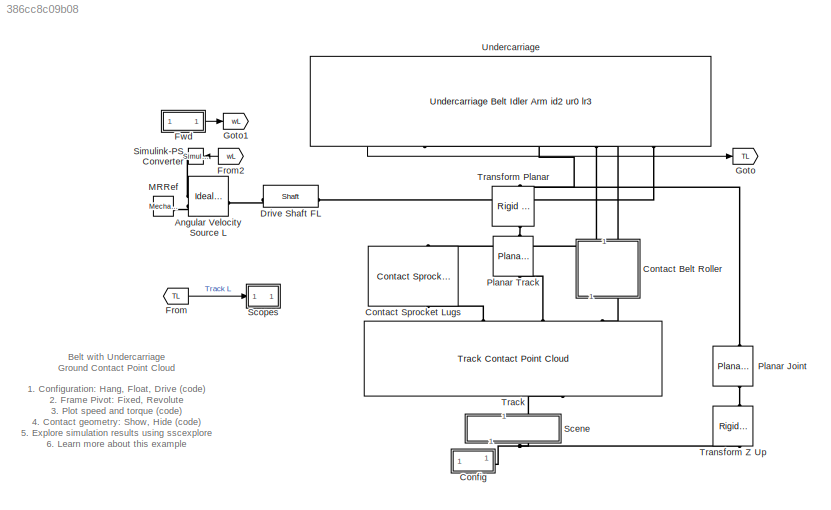
MODEL slx_386cc8c09b08
KIND model
CONFIG AbsTol = 1e-3
CONFIG EnableMultiTasking = on
CONFIG SolverName = ode23t
CONFIG StartFcn = tic
CONFIG StopFcn = Elapsed_Sim_Time = toc;\ndisp(['Elapsed Sim Time = ' num2str(Elapsed_Sim_Time)]);
CONFIG StopTime = 16
BLOCK [Reference] Angular Velocity Source L  REF=fl_lib/Mechanical/Mechanical Sources/Ideal Angular
Velocity Source
  SourceBlock = fl_lib/Mechanical/Mechanical Sources/Ideal Angular\nVelocity Source
  SourceType = Ideal Angular\nVelocity Source
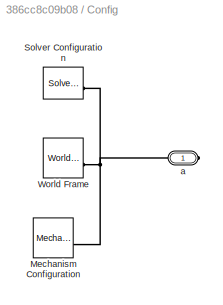
BLOCK [SubSystem] Config
BLOCK [Reference] Config/Mechanism Configuration  REF=sm_lib/Utilities/Mechanism
Configuration
  SourceBlock = sm_lib/Utilities/Mechanism\nConfiguration
  SourceType = Mechanism\nConfiguration
BLOCK [Reference] Config/Solver Configuration  REF=nesl_utility/Solver
Configuration
  SourceBlock = nesl_utility/Solver\nConfiguration
  SourceType = Solver\nConfiguration
BLOCK [Reference] Config/World Frame  REF=sm_lib/Frames and
Transforms/World Frame
  SourceBlock = sm_lib/Frames and\nTransforms/World Frame
  SourceType = World Frame
BLOCK [PMIOPort] Config/a
  Side = Right
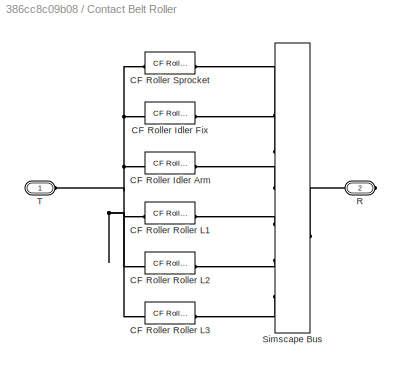
BLOCK [SubSystem] Contact Belt Roller
  NameLocation = right
BLOCK [Reference] Contact Belt Roller/CF Roller Idler Arm  REF=sm_trackV_lib_belt_contact_internal_sets/CF Roller Carcass
Planar s45
  NameLocation = right
  SourceBlock = sm_trackV_lib_belt_contact_internal_sets/CF Roller Carcass\nPlanar s45
BLOCK [Reference] Contact Belt Roller/CF Roller Idler Fix  REF=sm_trackV_lib_belt_contact_internal_sets/CF Roller Carcass
Planar s45
  NameLocation = right
  SourceBlock = sm_trackV_lib_belt_contact_internal_sets/CF Roller Carcass\nPlanar s45
BLOCK [Reference] Contact Belt Roller/CF Roller Roller L1  REF=sm_trackV_lib_belt_contact_internal_sets/CF Roller Carcass
Planar s45
  NameLocation = right
  SourceBlock = sm_trackV_lib_belt_contact_internal_sets/CF Roller Carcass\nPlanar s45
BLOCK [Reference] Contact Belt Roller/CF Roller Roller L2  REF=sm_trackV_lib_belt_contact_internal_sets/CF Roller Carcass
Planar s45
  NameLocation = right
  SourceBlock = sm_trackV_lib_belt_contact_internal_sets/CF Roller Carcass\nPlanar s45
BLOCK [Reference] Contact Belt Roller/CF Roller Roller L3  REF=sm_trackV_lib_belt_contact_internal_sets/CF Roller Carcass
Planar s45
  NameLocation = right
  SourceBlock = sm_trackV_lib_belt_contact_internal_sets/CF Roller Carcass\nPlanar s45
BLOCK [Reference] Contact Belt Roller/CF Roller Sprocket  REF=sm_trackV_lib_belt_contact_internal_sets/CF Roller Carcass
Planar s45
  NameLocation = right
  SourceBlock = sm_trackV_lib_belt_contact_internal_sets/CF Roller Carcass\nPlanar s45
BLOCK [PMIOPort] Contact Belt Roller/R
  Port = 2
  Side = Right
BLOCK [SimscapeBus] Contact Belt Roller/Simscape Bus
  HierarchyStrings = S;X;A;L1;L2;L3
BLOCK [PMIOPort] Contact Belt Roller/T
  Side = Left
BLOCK [Reference] Contact Sprocket Lugs  REF=sm_trackV_lib_belt_contact_internal_sets/Contact
Sprocket Lugs
Planar
t21 s45
  NameLocation = left
  SourceBlock = sm_trackV_lib_belt_contact_internal_sets/Contact\nSprocket Lugs\nPlanar\nt21 s45
  SourceType = Contact Force (Planar), Belt to Sprocket
BLOCK [Reference] Drive Shaft FL  REF=sm_trackV_lib_chain_underc_elem/Shaft
  SourceBlock = sm_trackV_lib_chain_underc_elem/Shaft
  SourceType = Driveshaft
BLOCK [From] From
  GotoTag = TL
BLOCK [From] From2
  GotoTag = wL
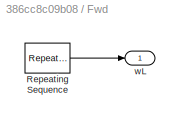
BLOCK [SubSystem] Fwd
  VariantControl = Fwd
BLOCK [Reference] Fwd/Repeating Sequence  REF=simulink/Sources/Repeating
Sequence
  SourceBlock = simulink/Sources/Repeating\nSequence
  SourceType = Repeating table
BLOCK [Outport] Fwd/wL
BLOCK [Goto] Goto
  GotoTag = TL
BLOCK [Goto] Goto1
  GotoTag = wL
BLOCK [Reference] MRRef  REF=fl_lib/Mechanical/Rotational Elements/Mechanical
Rotational Reference
  SourceBlock = fl_lib/Mechanical/Rotational Elements/Mechanical\nRotational Reference
  SourceType = Mechanical\nRotational Reference
BLOCK [Reference] Planar Joint  REF=sm_lib/Joints/Planar Joint
  Commented = through
  NameLocation = right
  SourceBlock = sm_lib/Joints/Planar Joint
  SourceType = Planar Joint
BLOCK [Reference] Planar Track  REF=sm_lib/Joints/Planar Joint
  SourceBlock = sm_lib/Joints/Planar Joint
  SourceType = Planar Joint
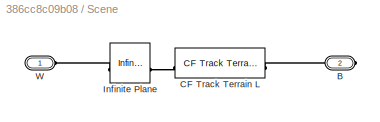
BLOCK [SubSystem] Scene
  Commented = on
  NameLocation = right
BLOCK [PMIOPort] Scene/B
  Port = 2
  Side = Right
BLOCK [Reference] Scene/CF Track Terrain L  REF=sm_trackV_lib_terrain_contact_s45/CF Track Terrain s45
  SourceBlock = sm_trackV_lib_terrain_contact_s45/CF Track Terrain s45
  SourceType = Contact Forces, Full Track to Terrain
BLOCK [Reference] Scene/Infinite Plane  REF=sm_lib/Curves and Surfaces/Infinite Plane
  SourceBlock = sm_lib/Curves and Surfaces/Infinite Plane
  SourceType = Infinite Plane
BLOCK [PMIOPort] Scene/W
  Side = Left
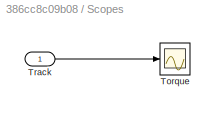
BLOCK [SubSystem] Scopes
BLOCK [Scope] Scopes/Torque
  Floating = off
  GraphicalSettings = {"GraphicalSettings":{"LegacySettings":true,"Style":{"Style":{"CurrentConfiguration":"extmgr.ConfigurationSet","MinimizeControls":"false","PlotType":"Auto","Version":"2023a"}}}}
  NumInputPorts = 1
  WasSavedAsWebScope = on
BLOCK [Inport] Scopes/Track
BLOCK [Reference] Simulink-PS Converter  REF=nesl_utility/Simulink-PS
Converter
  NameLocation = top
  SourceBlock = nesl_utility/Simulink-PS\nConverter
  SourceType = Simulink-PS\nConverter
BLOCK [Reference] Track  REF=sm_trackV_lib_belt_track_s45/Track
Contact
Point Cloud
  NameLocation = right
  SourceBlock = sm_trackV_lib_belt_track_s45/Track\nContact\nPoint Cloud
  SourceType = Segmented Belt (Planar), Point Cloud to Ground
BLOCK [Reference] Transform Planar  REF=sm_lib/Frames and
Transforms/Rigid
Transform
  NameLocation = left
  SourceBlock = sm_lib/Frames and\nTransforms/Rigid\nTransform
  SourceType = Rigid\nTransform
BLOCK [Reference] Transform Z Up  REF=sm_lib/Frames and
Transforms/Rigid
Transform
  NameLocation = right
  SourceBlock = sm_lib/Frames and\nTransforms/Rigid\nTransform
  SourceType = Rigid\nTransform
BLOCK [Reference] Undercarriage  REF=sm_trackV_lib_belt_underc_idlerArm_i2u0l3/Undercarriage Belt
Idler Arm
id2 ur0 lr3
  AttributesFormatString = %<popup_trackFrame>
  NameLocation = right
  SourceBlock = sm_trackV_lib_belt_underc_idlerArm_i2u0l3/Undercarriage Belt\nIdler Arm\nid2 ur0 lr3
  SourceType = Undercarriage for Belt with Fixed Idler and Idler Arm (Planar)
ANNOTATION (root): 1. Configuration: Hang , Float , Drive ( code ) 2. Frame Pivot: Fixed , Revolute 3. Plot speed and torque ( code ) 4. Contact geometry: Show , Hide ( code ) 5. Explore simulation results using sscexplore 6. Learn more about this example
ANNOTATION (root): Belt with Undercarriage Ground Contact Point Cloud
LINE From2:1 -> Simulink-PS Converter:1
LINE From:1 -> Scopes:1
LINE Fwd/Repeating Sequence:1 -> Fwd/wL:1
LINE Fwd:1 -> Goto1:1
LINE Scopes/Track:1 -> Scopes/Torque:1
LINE Undercarriage:1 -> Goto:1
PLINE Angular Velocity Source L:LConn1 -- Drive Shaft FL:LConn1
PLINE Angular Velocity Source L:RConn1 -- Simulink-PS Converter:RConn1
PLINE Angular Velocity Source L:RConn2 -- MRRef:LConn1
PNET net1: Config/Mechanism Configuration:RConn1 -- Config/Solver Configuration:RConn1 -- Config/World Frame:RConn1 -- Config/a:RConn1
PNET net2: Config:RConn1 -- Scene:LConn1 -- Transform Z Up:LConn1
PLINE Contact Belt Roller/CF Roller Idler Arm:LConn1 -- Contact Belt Roller/Simscape Bus:LConn3
PNET net3: Contact Belt Roller/CF Roller Idler Arm:RConn1 -- Contact Belt Roller/CF Roller Idler Fix:RConn1 -- Contact Belt Roller/CF Roller Roller L1:RConn1 -- Contact Belt Roller/CF Roller Roller L2:RConn1 -- Contact Belt Roller/CF Roller Roller L3:RConn1 -- Contact Belt Roller/CF Roller Sprocket:RConn1 -- Contact Belt Roller/T:RConn1
PLINE Contact Belt Roller/CF Roller Idler Fix:LConn1 -- Contact Belt Roller/Simscape Bus:LConn2
PLINE Contact Belt Roller/CF Roller Roller L1:LConn1 -- Contact Belt Roller/Simscape Bus:LConn4
PLINE Contact Belt Roller/CF Roller Roller L2:LConn1 -- Contact Belt Roller/Simscape Bus:LConn5
PLINE Contact Belt Roller/CF Roller Roller L3:LConn1 -- Contact Belt Roller/Simscape Bus:LConn6
PLINE Contact Belt Roller/CF Roller Sprocket:LConn1 -- Contact Belt Roller/Simscape Bus:LConn1
PLINE Contact Belt Roller/R:RConn1 -- Contact Belt Roller/Simscape Bus:RConn1
PLINE Contact Belt Roller:LConn1 -- Track:RConn3
PLINE Contact Belt Roller:RConn1 -- Undercarriage:RConn1
PLINE Contact Sprocket Lugs:LConn1 -- Undercarriage:RConn4
PLINE Contact Sprocket Lugs:RConn1 -- Track:RConn1
PLINE Drive Shaft FL:RConn1 -- Undercarriage:RConn5
PLINE Planar Joint:LConn1 -- Transform Z Up:RConn1
PNET net4: Planar Joint:RConn1 -- Transform Planar:LConn1 -- Undercarriage:RConn3
PLINE Planar Track:LConn1 -- Transform Planar:RConn1
PLINE Planar Track:RConn1 -- Track:RConn2
PLINE Scene/B:RConn1 -- Scene/CF Track Terrain L:RConn1
PLINE Scene/CF Track Terrain L:LConn1 -- Scene/Infinite Plane:RConn1
PLINE Scene/Infinite Plane:LConn1 -- Scene/W:RConn1
PLINE Scene:RConn1 -- Track:LConn1
note: PNET lines group multi-terminal physical nets as a canonical sorted terminal list (undirected conserving connections); 2-terminal nets keep the pairwise PLINE form
